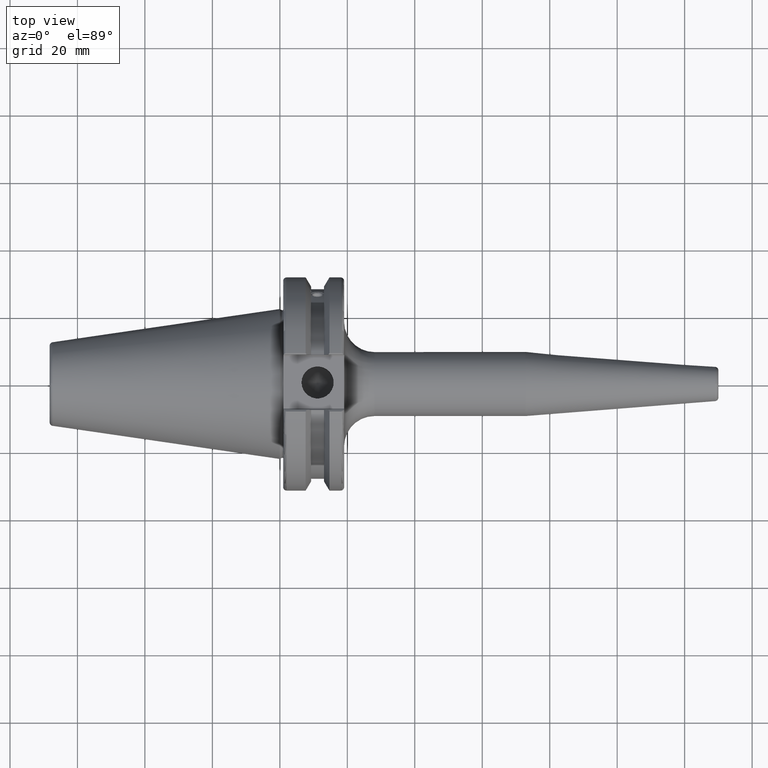
[diagram: clean part render]
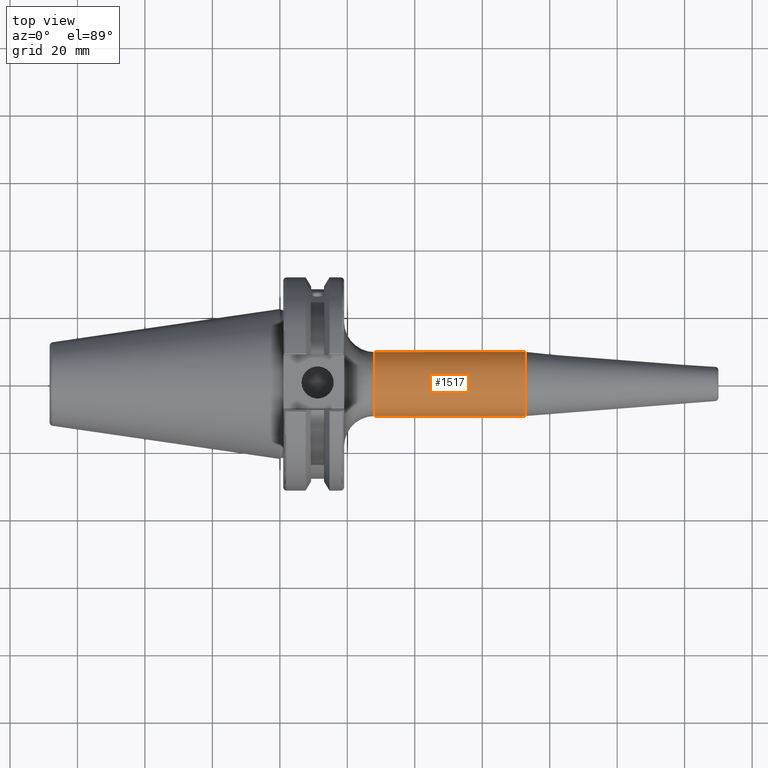
[diagram: same view with one face highlighted and labeled with its STEP entity id]
A machine part, top view. The second image highlights one B-rep face of the part: STEP entity #1517.
In plain terms, the highlighted cylindrical surface (bore or boss wall) has radius 9.5 mm, axis along (1, 0, 0).
Its self-contained STEP definition (entity closure, byte-faithful):
#98=LINE('',#2301,#194);
#194=VECTOR('',#1850,9.5);
#289=CYLINDRICAL_SURFACE('',#1642,9.5);
#372=FACE_OUTER_BOUND('',#461,.T.);
#461=EDGE_LOOP('',(#1053,#1054,#1055,#1056,#1057));
#565=CIRCLE('',#1636,9.5);
#566=CIRCLE('',#1638,9.5);
#569=CIRCLE('',#1641,9.5);
#639=VERTEX_POINT('',#2289);
#640=VERTEX_POINT('',#2293);
#641=VERTEX_POINT('',#2294);
#799=EDGE_CURVE('',#639,#639,#565,.T.);
#800=EDGE_CURVE('',#640,#641,#566,.T.);
#803=EDGE_CURVE('',#641,#640,#569,.T.);
#804=EDGE_CURVE('',#639,#640,#98,.T.);
#1053=ORIENTED_EDGE('',*,*,#799,.F.);
#1054=ORIENTED_EDGE('',*,*,#804,.T.);
#1055=ORIENTED_EDGE('',*,*,#803,.F.);
#1056=ORIENTED_EDGE('',*,*,#800,.F.);
#1057=ORIENTED_EDGE('',*,*,#804,.F.);
#1517=ADVANCED_FACE('',(#372),#289,.T.);
#1636=AXIS2_PLACEMENT_3D('',#2291,#1836,#1837);
#1638=AXIS2_PLACEMENT_3D('',#2295,#1840,#1841);
#1641=AXIS2_PLACEMENT_3D('',#2299,#1846,#1847);
#1642=AXIS2_PLACEMENT_3D('',#2300,#1848,#1849);
#1836=DIRECTION('center_axis',(1.,0.,0.));
#1837=DIRECTION('ref_axis',(0.,0.,-1.));
#1840=DIRECTION('center_axis',(-1.,0.,0.));
#1841=DIRECTION('ref_axis',(0.,-1.,-1.22464679914735E-16));
#1846=DIRECTION('center_axis',(-1.,0.,0.));
#1847=DIRECTION('ref_axis',(0.,-1.,-1.22464679914735E-16));
#1848=DIRECTION('center_axis',(1.,0.,0.));
#1849=DIRECTION('ref_axis',(0.,1.,0.));
#1850=DIRECTION('',(-1.,0.,0.));
#2289=CARTESIAN_POINT('',(72.8220786872146,-9.5,-1.16341445918999E-15));
#2291=CARTESIAN_POINT('Origin',(72.8220786872146,0.,0.));
#2293=CARTESIAN_POINT('',(28.05,-9.5,-1.16341445918999E-15));
#2294=CARTESIAN_POINT('',(28.05,-1.16341445918999E-15,-9.5));
#2295=CARTESIAN_POINT('Origin',(28.05,0.,0.));
#2299=CARTESIAN_POINT('Origin',(28.05,0.,0.));
#2300=CARTESIAN_POINT('Origin',(45.9360393436073,0.,0.));
#2301=CARTESIAN_POINT('',(45.9360393436073,-9.5,-1.16341445918999E-15));